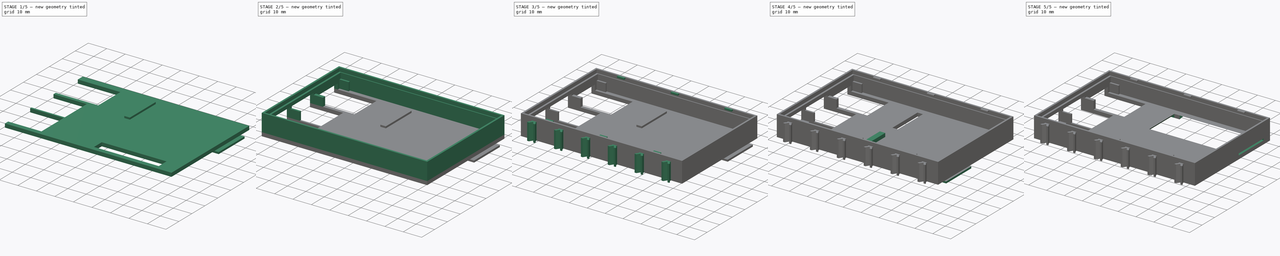
[diagram: build sequence overview — one tinted view per stage of 5, left to right]
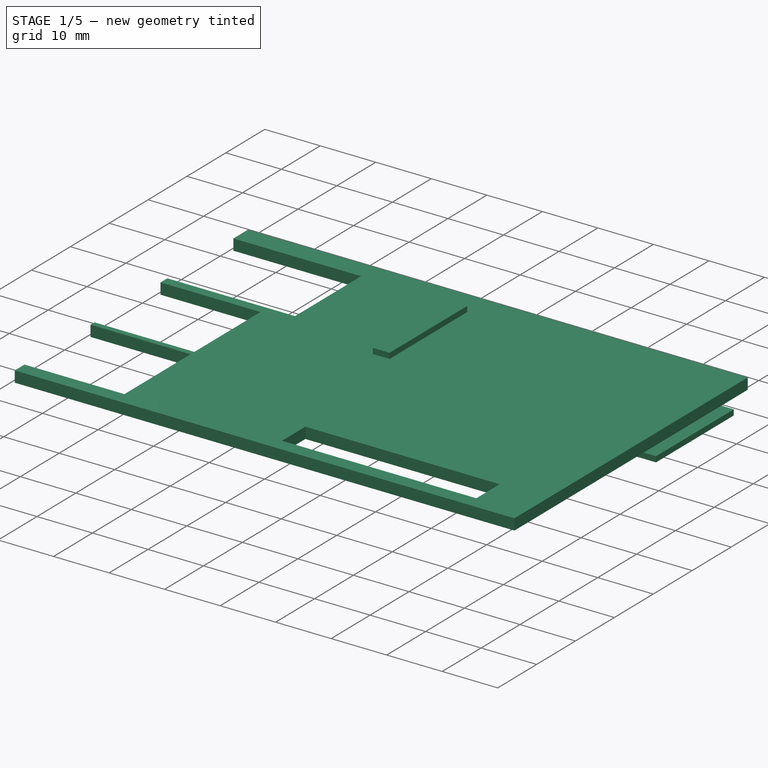
[diagram: stage 1 of 5 — iso view after this stage's code; geometry added in this stage tinted green]
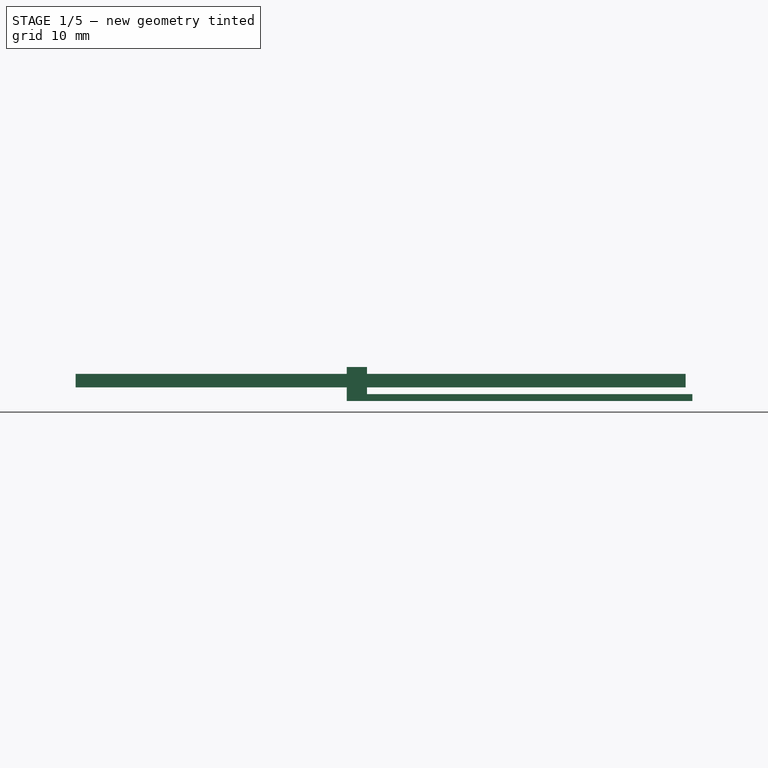
[diagram: stage 1 of 5 — front view after this stage's code; geometry added in this stage tinted green]
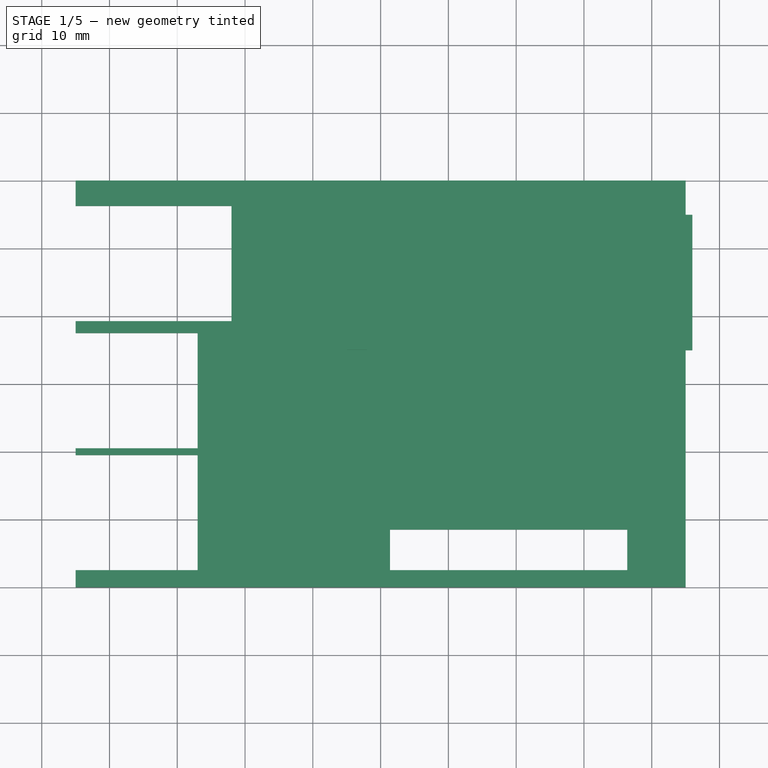
[diagram: stage 1 of 5 — top view after this stage's code; geometry added in this stage tinted green]
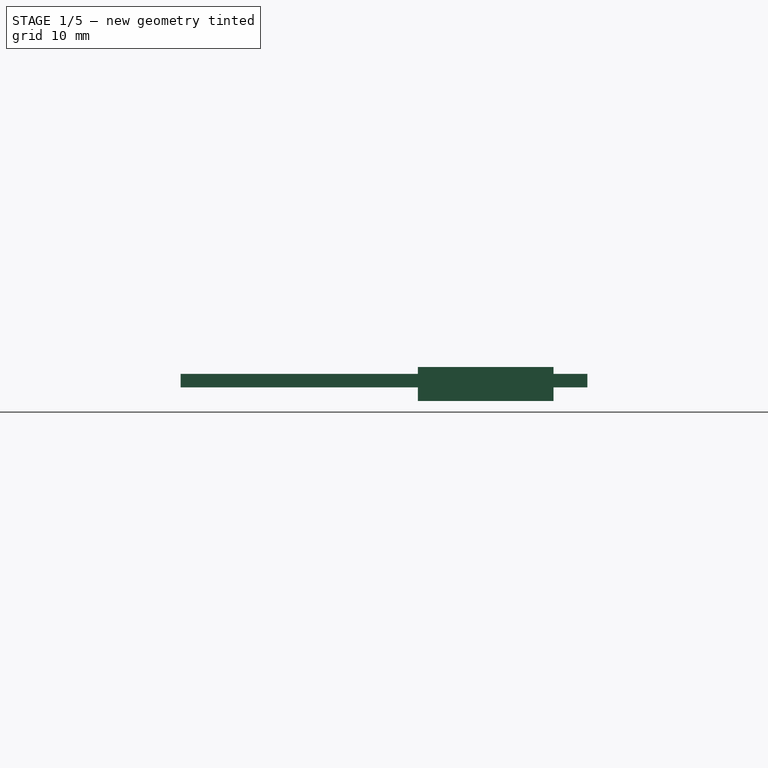
[diagram: stage 1 of 5 — right view after this stage's code; geometry added in this stage tinted green]
FCSTD DOCUMENT  (FreeCAD 0.19RUnknown)
Label: display_v4_bottom_with_ribbon_slot
License: All rights reserved
LicenseURL: http://en.wikipedia.org/wiki/All_rights_reserved
objects: Sketcher::SketchObject×8, PartDesign::Pad×7, Part::Box×4, Part::MultiFuse×2, Part::Cut×2, Part::Chamfer×2, PartDesign::Pocket×1, PartDesign::LinearPattern×1, PartDesign::Chamfer×1
note: 36 computed .brp shape members not serialized (recipe doc carries the construction recipe); baked Part::Feature solids carry a one-line shape summary decoded from their .brp

FEATURE [Sketcher::SketchObject] Sketch
  MapMode = 5
  sketch-geometry (30):
    g0: LineSegment StartX=-45 StartY=30 StartZ=0 EndX=-45 EndY=26.25 EndZ=0
    g1: LineSegment StartX=-45 StartY=26.25 StartZ=0 EndX=-22 EndY=26.25 EndZ=0
    g2: LineSegment StartX=-22 StartY=26.25 StartZ=0 EndX=-22 EndY=9.25 EndZ=0
    g3: LineSegment StartX=-22 StartY=9.25 StartZ=0 EndX=-45 EndY=9.25 EndZ=0
    g4: LineSegment StartX=-45 StartY=9.25 StartZ=0 EndX=-45 EndY=7.5 EndZ=0
    g5: LineSegment StartX=-45 StartY=7.5 StartZ=0 EndX=-27 EndY=7.5 EndZ=0
    g6: LineSegment StartX=-27 StartY=7.5 StartZ=0 EndX=-27 EndY=-9.5 EndZ=0
    g7: LineSegment StartX=-27 StartY=-9.5 StartZ=0 EndX=-45 EndY=-9.5 EndZ=0
    g8: LineSegment StartX=-45 StartY=-9.5 StartZ=0 EndX=-45 EndY=-10.5 EndZ=0
    g9: LineSegment StartX=-45 StartY=-10.5 StartZ=0 EndX=-27 EndY=-10.5 EndZ=0
    g10: LineSegment StartX=-27 StartY=-10.5 StartZ=0 EndX=-27 EndY=-27.5 EndZ=0
    g11: LineSegment StartX=-27 StartY=-27.5 StartZ=0 EndX=-45 EndY=-27.5 EndZ=0
    g12: LineSegment StartX=-45 StartY=-27.5 StartZ=0 EndX=-45 EndY=-30 EndZ=0
    g13: LineSegment StartX=-45 StartY=-30 StartZ=0 EndX=45 EndY=-30 EndZ=0
    g14: LineSegment StartX=45 StartY=-30 StartZ=0 EndX=45 EndY=30 EndZ=0
    g15: LineSegment StartX=45 StartY=30 StartZ=0 EndX=-45 EndY=30 EndZ=0
    g16: LineSegment StartX=1.39 StartY=-21.5 StartZ=0 EndX=36.39 EndY=-21.5 EndZ=0
    g17: LineSegment StartX=36.39 StartY=-21.5 StartZ=0 EndX=36.39 EndY=-27.5 EndZ=0
    g18: LineSegment StartX=36.39 StartY=-27.5 StartZ=0 EndX=1.39 EndY=-27.5 EndZ=0
    g19: LineSegment StartX=1.39 StartY=-27.5 StartZ=0 EndX=1.39 EndY=-21.5 EndZ=0
    g20: LineSegment [constr] StartX=-45 StartY=26.25 StartZ=0 EndX=-45 EndY=9.25 EndZ=0
    g21: LineSegment [constr] StartX=-45 StartY=7.5 StartZ=0 EndX=-45 EndY=-9.5 EndZ=0
    g22: LineSegment [constr] StartX=-45 StartY=-10.5 StartZ=0 EndX=-45 EndY=-27.5 EndZ=0
    g23: LineSegment [constr] StartX=-27 StartY=-9.5 StartZ=0 EndX=-27 EndY=-10.5 EndZ=0
    g24: GeomPoint [constr] X=-45 Y=-19 Z=0
    g25: GeomPoint [constr] X=-45 Y=-1 Z=0
    g26: GeomPoint [constr] X=-45 Y=17.75 Z=0
    g27: GeomPoint [constr] X=-45 Y=28 Z=0
    g28: GeomPoint [constr] X=18.89 Y=-27.5 Z=0
    g29: GeomPoint [constr] X=36.39 Y=-24.5 Z=0
  constraints (80):
    c: Vertical(g0)
    c: Coincident(g0,g1)
    c: Horizontal(g1)
    c: Coincident(g1,g2)
    c: Vertical(g2)
    c: Coincident(g2,g3)
    c: Horizontal(g3)
    c: Coincident(g3,g4)
    c: Vertical(g4)
    c: Coincident(g4,g5)
    c: Horizontal(g5)
    c: Coincident(g5,g6)
    c: Vertical(g6)
    c: Coincident(g6,g7)
    c: Horizontal(g7)
    c: Coincident(g7,g8)
    c: Coincident(g8,g9)
    c: Horizontal(g9)
    c: Coincident(g9,g10)
    c: Vertical(g10)
    c: Coincident(g10,g11)
    c: Horizontal(g11)
    c: Coincident(g11,g12)
    c: Coincident(g12,g13)
    c: Horizontal(g13)
    c: Coincident(g13,g14)
    c: Vertical(g14)
    c: Coincident(g14,g15)
    c: Coincident(g15,g0)
    c: Horizontal(g15)
    c: Coincident(g16,g17)
    c: Coincident(g17,g18)
    c: Coincident(g18,g19)
    c: Coincident(g19,g16)
    c: Horizontal(g16)
    c: Horizontal(g18)
    c: Vertical(g17)
    c: Vertical(g19)
    c: Symmetric(g0,g14,g-2)
    c: Coincident(g20,g0)
    c: Coincident(g20,g3)
    c: Vertical(g20)
    c: Coincident(g21,g4)
    c: Coincident(g21,g7)
    c: Vertical(g21)
    c: Coincident(g22,g8)
    c: Coincident(g22,g11)
    c: Vertical(g8)
    c: Vertical(g22)
    c: Vertical(g12)
    c: Coincident(g23,g6)
    c: Coincident(g23,g9)
    c: Vertical(g23)
    c: DistanceX(g4,g5) = 18
    c: DistanceY(g3,g0) = 17
    c: DistanceY(g7,g4) = 17
    c: DistanceY(g11,g8) = 17
    c: PointOnObject(g24,g22)
    c: PointOnObject(g25,g21)
    c: PointOnObject(g26,g20)
    c: Symmetric(g3,g0,g26)
    c: Symmetric(g4,g7,g25)
    c: Symmetric(g11,g8,g24)
    c: PointOnObject(g27,g0)
    c: DistanceY(g27,g0) = 2
    c: DistanceY(g26,g27) = 10.25
    c: DistanceY(g25,g27) = 29
    c: DistanceY(g24,g27) = 47
    c: DistanceX(g0,g1) = 23
    c: Symmetric(g14,g13,g-1)
    c: DistanceX(g0,g14) = 90
    c: DistanceY(g13,g14) = 60
    c: DistanceX(g16,g16) = 35
    c: DistanceY(g18,g16) = 6
    c: PointOnObject(g28,g18)
    c: Symmetric(g18,g17,g28)
    c: DistanceX(g28,g13) = 26.11
    c: PointOnObject(g29,g17)
    c: Symmetric(g17,g16,g29)
    c: DistanceY(g13,g29) = 5.5
FEATURE [PartDesign::Pad] Pad
  Length = 2
  Length2 = 100
  Profile = -> Sketch
  Type = 0
FEATURE [Part::Box] Box002  label="Würfel002"
  AttacherType = Attacher::AttachEngine3D
  Height = 5
  Length = 3
  Placement = pos=(-5,-25,-1) rot=(0,0,1;0rad)
  Width = 20
FEATURE [Part::Box] Box001  label="Würfel001"
  AttacherType = Attacher::AttachEngine3D
  Height = 1
  Length = 51
  Placement = pos=(-5,-25,-1) rot=(0,0,1;0rad)
  Width = 20
FEATURE [Part::MultiFuse] Fusion  label="wire channel"
  Placement = pos=(0,30,-1) rot=(0,0,1;0rad)
  Shapes = -> [Box001,Box002]
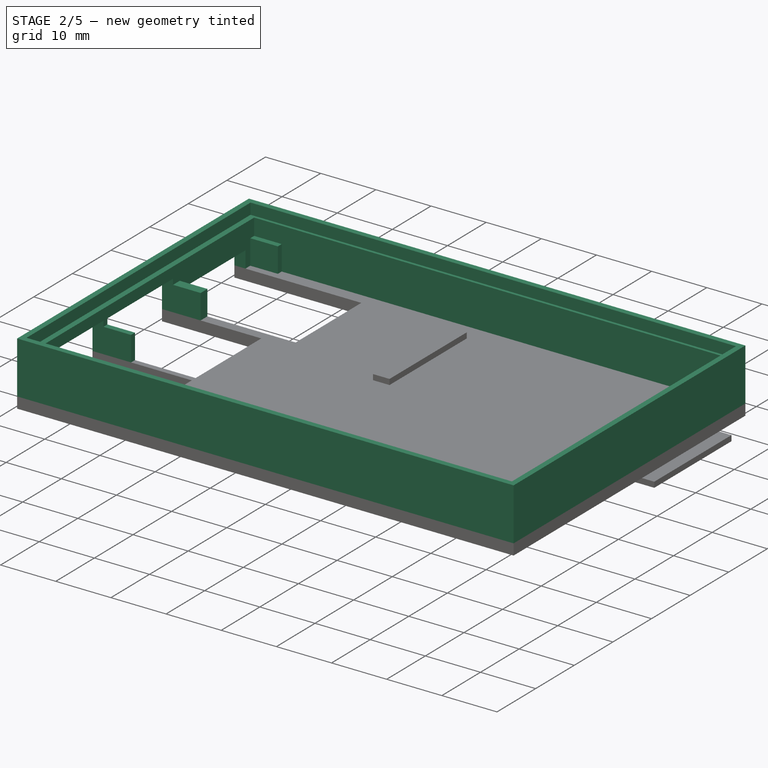
[diagram: stage 2 of 5 — iso view after this stage's code; geometry added in this stage tinted green]
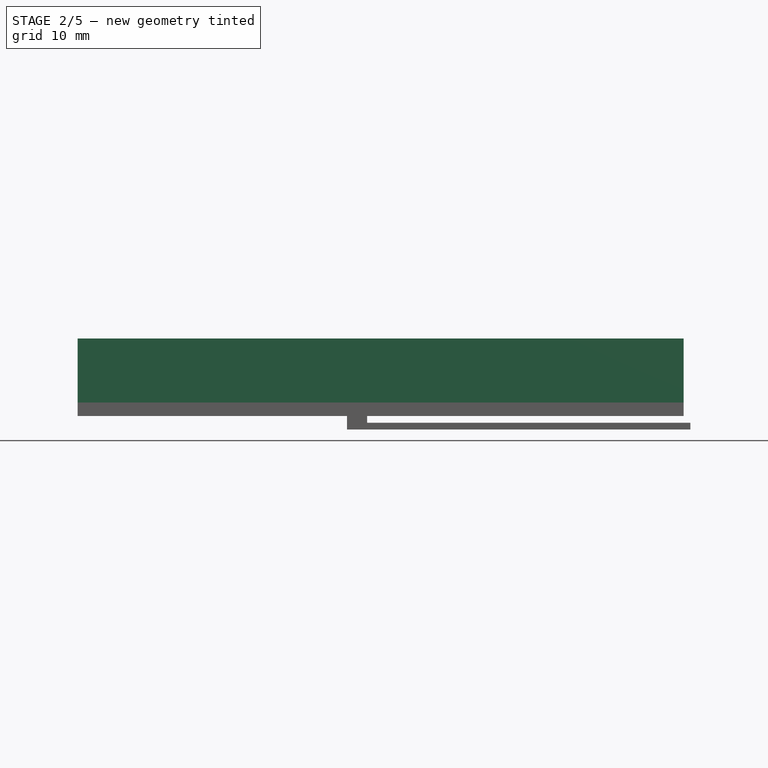
[diagram: stage 2 of 5 — front view after this stage's code; geometry added in this stage tinted green]
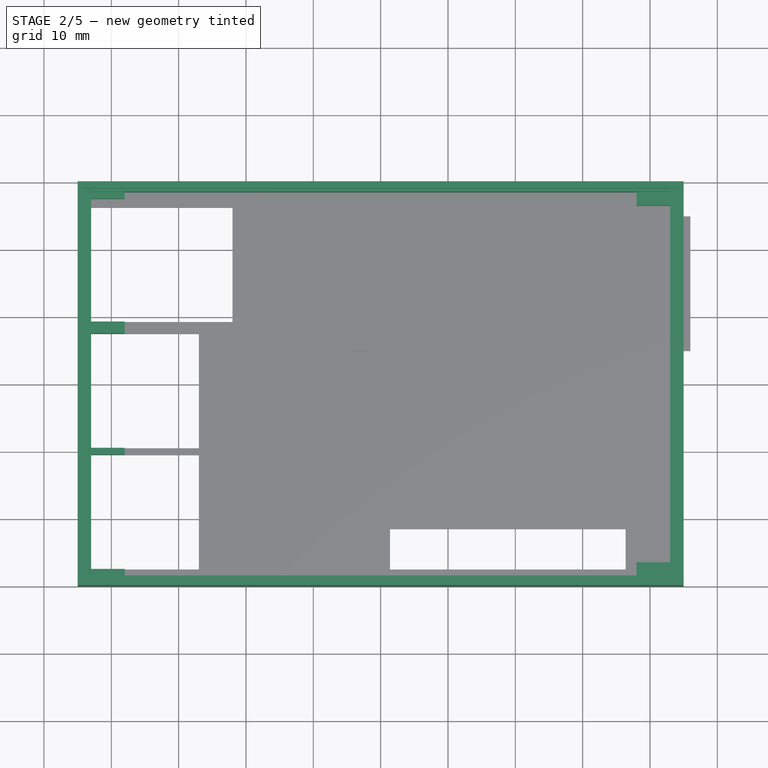
[diagram: stage 2 of 5 — top view after this stage's code; geometry added in this stage tinted green]
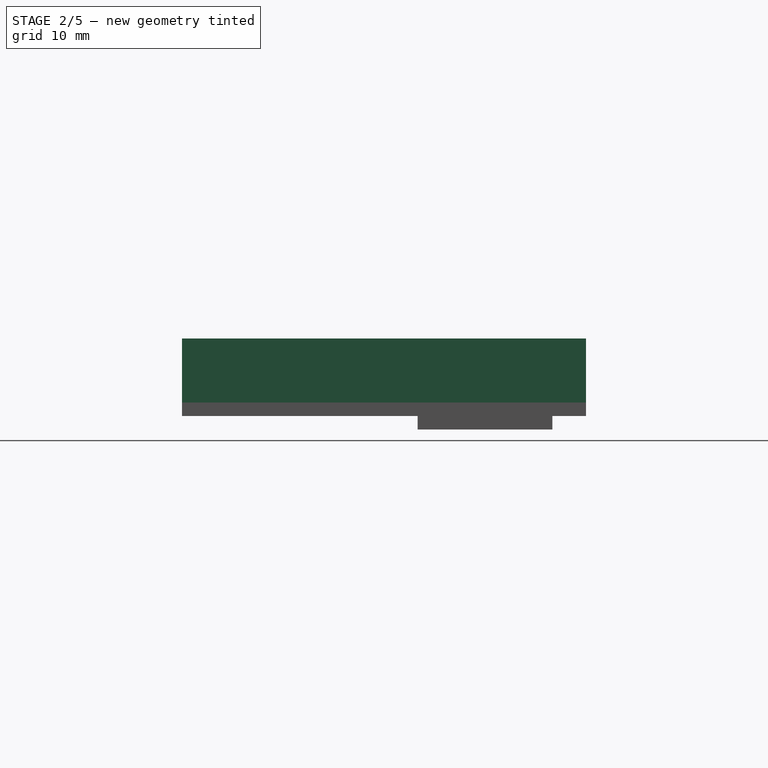
[diagram: stage 2 of 5 — right view after this stage's code; geometry added in this stage tinted green]
FEATURE [Sketcher::SketchObject] Sketch001
  MapMode = 5
  Placement = pos=(0,0,2) rot=(0,0,1;0rad)
  Support = -> [Pad]
  sketch-geometry (30):
    g0: LineSegment StartX=-45 StartY=9.25 StartZ=0 EndX=-43 EndY=9.25 EndZ=0
    g1: LineSegment StartX=-43 StartY=9.25 StartZ=0 EndX=-43 EndY=7.5 EndZ=0
    g2: LineSegment StartX=-43 StartY=7.5 StartZ=0 EndX=-45 EndY=7.5 EndZ=0
    g3: LineSegment StartX=-45 StartY=7.5 StartZ=0 EndX=-45 EndY=9.25 EndZ=0
    g4: LineSegment StartX=-45 StartY=-9.5 StartZ=0 EndX=-43 EndY=-9.5 EndZ=0
    g5: LineSegment StartX=-43 StartY=-9.5 StartZ=0 EndX=-43 EndY=-10.5 EndZ=0
    g6: LineSegment StartX=-43 StartY=-10.5 StartZ=0 EndX=-45 EndY=-10.5 EndZ=0
    g7: LineSegment StartX=-45 StartY=-10.5 StartZ=0 EndX=-45 EndY=-9.5 EndZ=0
    g8: LineSegment StartX=-45 StartY=-27.5 StartZ=0 EndX=-43 EndY=-27.5 EndZ=0
    g9: LineSegment StartX=-43 StartY=-27.5 StartZ=0 EndX=-43 EndY=-28.5 EndZ=0
    g10: LineSegment StartX=-43 StartY=-28.5 StartZ=0 EndX=43 EndY=-28.5 EndZ=0
    g11: LineSegment StartX=43 StartY=-28.5 StartZ=0 EndX=43 EndY=28.5 EndZ=0
    g12: LineSegment StartX=43 StartY=28.5 StartZ=0 EndX=-43 EndY=28.5 EndZ=0
    g13: LineSegment StartX=-43 StartY=28.5 StartZ=0 EndX=-43 EndY=26.25 EndZ=0
    g14: LineSegment StartX=-43 StartY=26.25 StartZ=0 EndX=-45 EndY=26.25 EndZ=0
    g15: LineSegment StartX=-45 StartY=26.25 StartZ=0 EndX=-45 EndY=30 EndZ=0
    g16: LineSegment StartX=-45 StartY=30 StartZ=0 EndX=45 EndY=30 EndZ=0
    g17: LineSegment StartX=45 StartY=30 StartZ=0 EndX=45 EndY=-30 EndZ=0
    g18: LineSegment StartX=45 StartY=-30 StartZ=0 EndX=-45 EndY=-30 EndZ=0
    g19: LineSegment StartX=-45 StartY=-30 StartZ=0 EndX=-45 EndY=-27.5 EndZ=0
    g20: LineSegment [constr] StartX=-45 StartY=-10.5 StartZ=0 EndX=-45 EndY=-27.5 EndZ=0
    g21: LineSegment [constr] StartX=-43 StartY=-27.5 StartZ=0 EndX=-43 EndY=-10.5 EndZ=0
    g22: LineSegment [constr] StartX=-45 StartY=7.5 StartZ=0 EndX=-45 EndY=-9.5 EndZ=0
    g23: LineSegment [constr] StartX=-43 StartY=7.5 StartZ=0 EndX=-43 EndY=-9.5 EndZ=0
    g24: LineSegment [constr] StartX=-45 StartY=9.25 StartZ=0 EndX=-45 EndY=26.25 EndZ=0
    g25: LineSegment [constr] StartX=-43 StartY=26.25 StartZ=0 EndX=-43 EndY=9.25 EndZ=0
    g26: GeomPoint [constr] X=-45 Y=28 Z=0
    g27: GeomPoint [constr] X=-45 Y=17.75 Z=0
    g28: GeomPoint [constr] X=-45 Y=-1 Z=0
    g29: GeomPoint [constr] X=-45 Y=-19 Z=0
  constraints (80):
    c: Coincident(g0,g1)
    c: Coincident(g1,g2)
    c: Coincident(g2,g3)
    c: Coincident(g3,g0)
    c: Horizontal(g0)
    c: Horizontal(g2)
    c: Vertical(g1)
    c: Vertical(g3)
    c: Coincident(g4,g5)
    c: Coincident(g5,g6)
    c: Coincident(g6,g7)
    c: Coincident(g7,g4)
    c: Horizontal(g4)
    c: Horizontal(g6)
    c: Vertical(g5)
    c: Vertical(g7)
    c: Coincident(g8,g9)
    c: Vertical(g9)
    c: Coincident(g9,g10)
    c: Horizontal(g10)
    c: Coincident(g10,g11)
    c: Vertical(g11)
    c: Coincident(g11,g12)
    c: Horizontal(g12)
    c: Coincident(g12,g13)
    c: Coincident(g13,g14)
    c: Horizontal(g14)
    c: Coincident(g14,g15)
    c: Vertical(g15)
    c: Coincident(g15,g16)
    c: Horizontal(g16)
    c: Coincident(g16,g17)
    c: Vertical(g17)
    c: Coincident(g17,g18)
    c: Horizontal(g18)
    c: Coincident(g18,g19)
    c: Coincident(g19,g8)
    c: Horizontal(g8)
    c: Vertical(g19)
    c: Coincident(g20,g6)
    c: Coincident(g20,g8)
    c: Vertical(g20)
    c: Coincident(g21,g8)
    c: Coincident(g21,g5)
    c: Coincident(g22,g2)
    c: Coincident(g22,g4)
    c: Vertical(g22)
    c: Coincident(g23,g1)
    c: Coincident(g23,g4)
    c: Vertical(g23)
    c: Coincident(g24,g0)
    c: Coincident(g24,g14)
    c: Vertical(g24)
    c: Coincident(g25,g13)
    c: Coincident(g25,g0)
    c: Vertical(g25)
    c: Vertical(g21)
    c: Vertical(g13)
    c: DistanceX(g8,g8) = 2
    c: Symmetric(g15,g16,g-2)
    c: Symmetric(g11,g12,g-2)
    c: Symmetric(g16,g17,g-1)
    c: Symmetric(g10,g11,g-1)
    c: DistanceX(g15,g16) = 90
    c: DistanceY(g17,g16) = 60
    c: DistanceY(g17,g10) = 1.5
    c: PointOnObject(g26,g15)
    c: DistanceY(g26,g15) = 2
    c: PointOnObject(g27,g24)
    c: PointOnObject(g28,g22)
    c: PointOnObject(g29,g20)
    c: Symmetric(g14,g0,g27)
    c: Symmetric(g4,g2,g28)
    c: Symmetric(g8,g6,g29)
    c: Equal(g25,g23)
    c: Equal(g23,g21)
    c: DistanceY(g25,g25) = 17
    c: DistanceY(g27,g26) = 10.25
    c: DistanceY(g28,g26) = 29
    c: DistanceY(g29,g26) = 47
FEATURE [PartDesign::Pad] Pad001
  Length = 9.5
  Length2 = 100
  Profile = -> Sketch001
  Type = 0
FEATURE [Sketcher::SketchObject] Sketch002
  MapMode = 5
  Placement = pos=(-45,0,0) rot=(0.57735,-0.57735,-0.57735;2.0944rad)
  Support = -> [Pad001]
  sketch-geometry (18):
    g0: LineSegment StartX=-26.25 StartY=11.5 StartZ=0 EndX=-9.25 EndY=11.5 EndZ=0
    g1: LineSegment StartX=-9.25 StartY=11.5 StartZ=0 EndX=-9.25 EndY=5 EndZ=0
    g2: LineSegment StartX=-9.25 StartY=5 StartZ=0 EndX=-26.25 EndY=5 EndZ=0
    g3: LineSegment StartX=-26.25 StartY=5 StartZ=0 EndX=-26.25 EndY=11.5 EndZ=0
    g4: LineSegment StartX=-7.5 StartY=11.5 StartZ=0 EndX=9.5 EndY=11.5 EndZ=0
    g5: LineSegment StartX=9.5 StartY=11.5 StartZ=0 EndX=9.5 EndY=7.5 EndZ=0
    g6: LineSegment StartX=9.5 StartY=7.5 StartZ=0 EndX=-7.5 EndY=7.5 EndZ=0
    g7: LineSegment StartX=-7.5 StartY=7.5 StartZ=0 EndX=-7.5 EndY=11.5 EndZ=0
    g8: LineSegment StartX=10.5 StartY=11.5 StartZ=0 EndX=27.5 EndY=11.5 EndZ=0
    g9: LineSegment StartX=27.5 StartY=11.5 StartZ=0 EndX=27.5 EndY=7.5 EndZ=0
    g10: LineSegment StartX=27.5 StartY=7.5 StartZ=0 EndX=10.5 EndY=7.5 EndZ=0
    g11: LineSegment StartX=10.5 StartY=7.5 StartZ=0 EndX=10.5 EndY=11.5 EndZ=0
    g12: LineSegment [constr] StartX=-9.25 StartY=11.5 StartZ=0 EndX=-7.5 EndY=11.5 EndZ=0
    g13: LineSegment [constr] StartX=9.5 StartY=11.5 StartZ=0 EndX=10.5 EndY=11.5 EndZ=0
    g14: GeomPoint [constr] X=-17.75 Y=5 Z=0
    g15: GeomPoint [constr] X=1 Y=7.5 Z=0
    g16: GeomPoint [constr] X=19 Y=7.5 Z=0
    g17: LineSegment [constr] StartX=9.5 StartY=7.5 StartZ=0 EndX=10.5 EndY=7.5 EndZ=0
  constraints (48):
    c: Coincident(g0,g1)
    c: Coincident(g1,g2)
    c: Coincident(g2,g3)
    c: Coincident(g3,g0)
    c: Horizontal(g0)
    c: Horizontal(g2)
    c: Vertical(g1)
    c: Vertical(g3)
    c: Coincident(g4,g5)
    c: Coincident(g5,g6)
    c: Coincident(g6,g7)
    c: Coincident(g7,g4)
    c: Horizontal(g4)
    c: Horizontal(g6)
    c: Vertical(g5)
    c: Vertical(g7)
    c: Coincident(g8,g9)
    c: Coincident(g9,g10)
    c: Coincident(g10,g11)
    c: Coincident(g11,g8)
    c: Horizontal(g8)
    c: Horizontal(g10)
    c: Vertical(g9)
    c: Vertical(g11)
    c: Coincident(g12,g0)
    c: Coincident(g12,g4)
    c: Coincident(g13,g4)
    c: Coincident(g13,g8)
    c: Horizontal(g13)
    c: Horizontal(g12)
    c: Equal(g0,g4)
    c: Equal(g4,g8)
    c: DistanceX(g0,g0) = 17
    c: PointOnObject(g14,g2)
    c: PointOnObject(g15,g6)
    c: PointOnObject(g16,g10)
    c: Symmetric(g2,g1,g14)
    c: Symmetric(g6,g5,g15)
    c: Symmetric(g10,g9,g16)
    c: DistanceX(g14,g-1) = 17.75
    c: DistanceX(g-1,g15) = 1
    c: DistanceX(g-1,g16) = 19
    c: DistanceY(g-1,g14) = 5
    c: DistanceY(g-1,g15) = 7.5
    c: Coincident(g17,g5)
    c: Coincident(g17,g10)
    c: Horizontal(g17)
    c: DistanceY(g-1,g0) = 11.5
FEATURE [PartDesign::Pad] Pad002
  Length = 2
  Length2 = 100
  Profile = -> Sketch002
  Reversed = true
  Type = 0
FEATURE [Sketcher::SketchObject] Sketch003
  MapMode = 5
  Placement = pos=(0,0,2) rot=(0,0,1;0rad)
  Support = -> [Pad002]
  sketch-geometry (34):
    g0: LineSegment StartX=-43 StartY=28.5 StartZ=0 EndX=-38 EndY=28.5 EndZ=0
    g1: LineSegment StartX=-38 StartY=28.5 StartZ=0 EndX=-38 EndY=27.5 EndZ=0
    g2: LineSegment StartX=-38 StartY=27.5 StartZ=0 EndX=-43 EndY=27.5 EndZ=0
    g3: LineSegment StartX=-43 StartY=27.5 StartZ=0 EndX=-43 EndY=28.5 EndZ=0
    g4: LineSegment StartX=-43 StartY=9.25 StartZ=0 EndX=-38 EndY=9.25 EndZ=0
    g5: LineSegment StartX=-38 StartY=9.25 StartZ=0 EndX=-38 EndY=7.5 EndZ=0
    g6: LineSegment StartX=-38 StartY=7.5 StartZ=0 EndX=-43 EndY=7.5 EndZ=0
    g7: LineSegment StartX=-43 StartY=7.5 StartZ=0 EndX=-43 EndY=9.25 EndZ=0
    g8: LineSegment StartX=-43 StartY=-9.5 StartZ=0 EndX=-38 EndY=-9.5 EndZ=0
    g9: LineSegment StartX=-38 StartY=-9.5 StartZ=0 EndX=-38 EndY=-10.5 EndZ=0
    g10: LineSegment StartX=-38 StartY=-10.5 StartZ=0 EndX=-43 EndY=-10.5 EndZ=0
    g11: LineSegment StartX=-43 StartY=-10.5 StartZ=0 EndX=-43 EndY=-9.5 EndZ=0
    g12: LineSegment StartX=-43 StartY=-27.5 StartZ=0 EndX=-38 EndY=-27.5 EndZ=0
    g13: LineSegment StartX=-38 StartY=-27.5 StartZ=0 EndX=-38 EndY=-28.5 EndZ=0
    g14: LineSegment StartX=-38 StartY=-28.5 StartZ=0 EndX=-43 EndY=-28.5 EndZ=0
    g15: LineSegment StartX=-43 StartY=-28.5 StartZ=0 EndX=-43 EndY=-27.5 EndZ=0
    g16: LineSegment StartX=38 StartY=-26.5 StartZ=0 EndX=43 EndY=-26.5 EndZ=0
    g17: LineSegment StartX=43 StartY=-26.5 StartZ=0 EndX=43 EndY=-28.5 EndZ=0
    g18: LineSegment StartX=43 StartY=-28.5 StartZ=0 EndX=38 EndY=-28.5 EndZ=0
    g19: LineSegment StartX=38 StartY=-28.5 StartZ=0 EndX=38 EndY=-26.5 EndZ=0
    g20: LineSegment StartX=38 StartY=28.5 StartZ=0 EndX=43 EndY=28.5 EndZ=0
    g21: LineSegment StartX=43 StartY=28.5 StartZ=0 EndX=43 EndY=26.5 EndZ=0
    g22: LineSegment StartX=43 StartY=26.5 StartZ=0 EndX=38 EndY=26.5 EndZ=0
    g23: LineSegment StartX=38 StartY=26.5 StartZ=0 EndX=38 EndY=28.5 EndZ=0
    g24: LineSegment [constr] StartX=-38 StartY=28.5 StartZ=0 EndX=38 EndY=28.5 EndZ=0
    g25: LineSegment [constr] StartX=38 StartY=26.5 StartZ=0 EndX=38 EndY=-26.5 EndZ=0
    g26: LineSegment [constr] StartX=43 StartY=26.5 StartZ=0 EndX=43 EndY=-26.5 EndZ=0
    g27: LineSegment [constr] StartX=-38 StartY=-28.5 StartZ=0 EndX=38 EndY=-28.5 EndZ=0
    g28: LineSegment [constr] StartX=-43 StartY=-27.5 StartZ=0 EndX=-43 EndY=-10.5 EndZ=0
    g29: LineSegment [constr] StartX=-38 StartY=-10.5 StartZ=0 EndX=-38 EndY=-27.5 EndZ=0
    g30: LineSegment [constr] StartX=-38 StartY=-9.5 StartZ=0 EndX=-38 EndY=7.5 EndZ=0
    g31: LineSegment [constr] StartX=-43 StartY=7.5 StartZ=0 EndX=-43 EndY=-9.5 EndZ=0
    g32: LineSegment [constr] StartX=-43 StartY=9.25 StartZ=0 EndX=-43 EndY=27.5 EndZ=0
    g33: LineSegment [constr] StartX=-38 StartY=27.5 StartZ=0 EndX=-38 EndY=9.25 EndZ=0
  constraints (91):
    c: Coincident(g0,g1)
    c: Coincident(g1,g2)
    c: Coincident(g2,g3)
    c: Coincident(g3,g0)
    c: Horizontal(g0)
    c: Horizontal(g2)
    c: Vertical(g1)
    c: Vertical(g3)
    c: Coincident(g4,g5)
    c: Coincident(g5,g6)
    c: Coincident(g6,g7)
    c: Coincident(g7,g4)
    c: Horizontal(g4)
    c: Horizontal(g6)
    c: Vertical(g5)
    c: Vertical(g7)
    c: Coincident(g8,g9)
    c: Coincident(g9,g10)
    c: Coincident(g10,g11)
    c: Coincident(g11,g8)
    c: Horizontal(g8)
    c: Horizontal(g10)
    c: Vertical(g9)
    c: Vertical(g11)
    c: Coincident(g12,g13)
    c: Coincident(g13,g14)
    c: Coincident(g14,g15)
    c: Coincident(g15,g12)
    c: Horizontal(g12)
    c: Horizontal(g14)
    c: Vertical(g13)
    c: Vertical(g15)
    c: Coincident(g16,g17)
    c: Coincident(g17,g18)
    c: Coincident(g18,g19)
    c: Coincident(g19,g16)
    c: Horizontal(g16)
    c: Horizontal(g18)
    c: Vertical(g17)
    c: Vertical(g19)
    c: Coincident(g20,g21)
    c: Coincident(g21,g22)
    c: Coincident(g22,g23)
    c: Coincident(g23,g20)
    c: Horizontal(g20)
    c: Horizontal(g22)
    c: Vertical(g21)
    c: Vertical(g23)
    c: Coincident(g24,g0)
    c: Coincident(g24,g20)
    c: Coincident(g25,g16)
    c: Vertical(g25)
    c: Coincident(g26,g21)
    c: Coincident(g26,g16)
    c: Vertical(g26)
    c: Coincident(g25,g22)
    c: Coincident(g27,g13)
    c: Coincident(g27,g18)
    c: Horizontal(g27)
    c: Coincident(g28,g12)
    c: Coincident(g28,g10)
    c: Coincident(g29,g9)
    c: Coincident(g29,g12)
    c: Coincident(g30,g8)
    c: Coincident(g30,g5)
    c: Vertical(g30)
    c: Coincident(g31,g6)
    c: Coincident(g31,g8)
    c: Vertical(g31)
    c: Coincident(g32,g4)
    c: Coincident(g32,g2)
    c: Vertical(g32)
    c: Coincident(g33,g1)
    c: Coincident(g33,g4)
    c: Vertical(g33)
    c: Vertical(g29)
    c: Vertical(g28)
    c: Symmetric(g0,g20,g-2)
    c: Symmetric(g0,g20,g-2)
    c: Symmetric(g16,g21,g-1)
    c: Symmetric(g20,g17,g-1)
    c: DistanceX(g0,g20) = 86
    c: DistanceY(g21,g20) = 2
    c: DistanceY(g6,g4) = 1.75
    c: DistanceY(g10,g8) = 1
    c: DistanceY(g17,g20) = 57
    c: DistanceX(g18,g17) = 5
    c: DistanceY(g8,g6) = 17
    c: Equal(g28,g31)
    c: DistanceY(g2,g0) = 1
    c: Symmetric(g2,g12,g-1)
FEATURE [PartDesign::Pad] Pad003
  Length = 4.5
  Length2 = 100
  Profile = -> Sketch003
  Type = 0
FEATURE [Sketcher::SketchObject] Sketch004
  MapMode = 5
  Placement = pos=(0,0,11.5) rot=(0,0,1;0rad)
  Support = -> [Pad003]
  sketch-geometry (4):
    g0: LineSegment StartX=-44 StartY=29 StartZ=0 EndX=44 EndY=29 EndZ=0
    g1: LineSegment StartX=44 StartY=29 StartZ=0 EndX=44 EndY=-29 EndZ=0
    g2: LineSegment StartX=44 StartY=-29 StartZ=0 EndX=-44 EndY=-29 EndZ=0
    g3: LineSegment StartX=-44 StartY=-29 StartZ=0 EndX=-44 EndY=29 EndZ=0
  constraints (12):
    c: Coincident(g0,g1)
    c: Coincident(g1,g2)
    c: Coincident(g2,g3)
    c: Coincident(g3,g0)
    c: Horizontal(g0)
    c: Horizontal(g2)
    c: Vertical(g1)
    c: Vertical(g3)
    c: Symmetric(g0,g0,g-2)
    c: DistanceX(g0,g0) = 88
    c: Symmetric(g2,g0,g-1)
    c: DistanceY(g2,g0) = 58
FEATURE [PartDesign::Pocket] Pocket
  Length = 2
  Length2 = 100
  Profile = -> Sketch004
  Type = 0
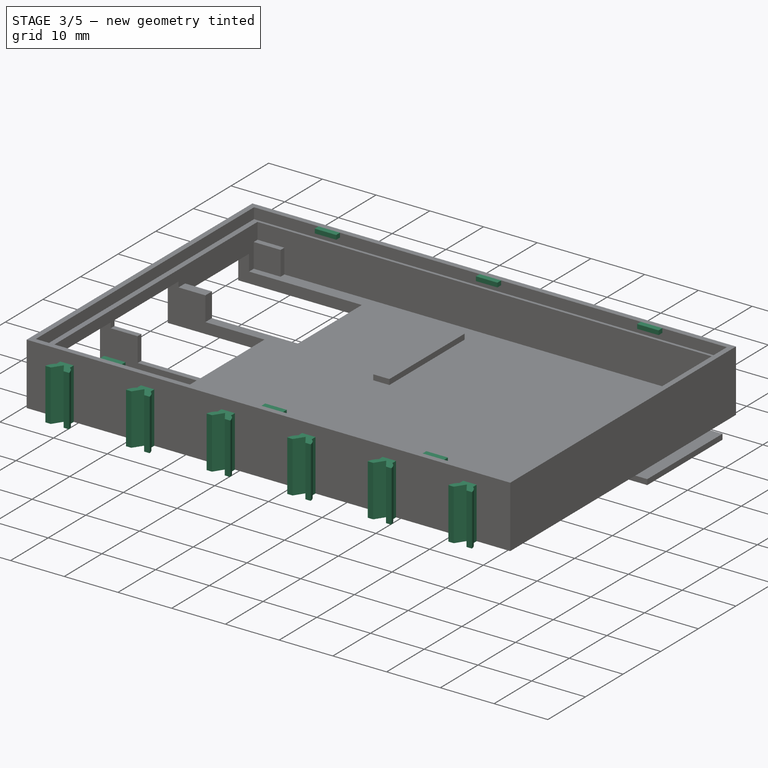
[diagram: stage 3 of 5 — iso view after this stage's code; geometry added in this stage tinted green]
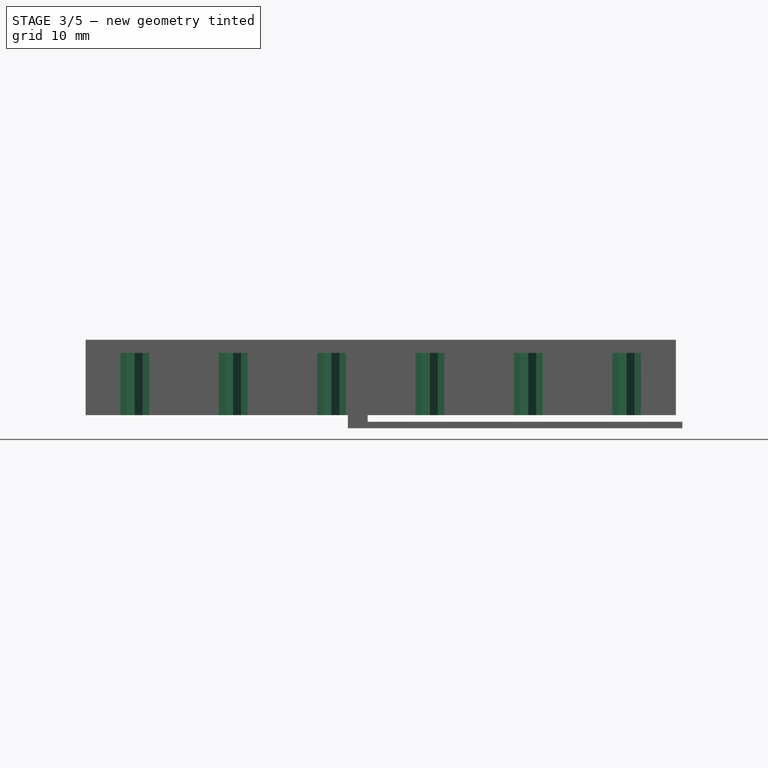
[diagram: stage 3 of 5 — front view after this stage's code; geometry added in this stage tinted green]
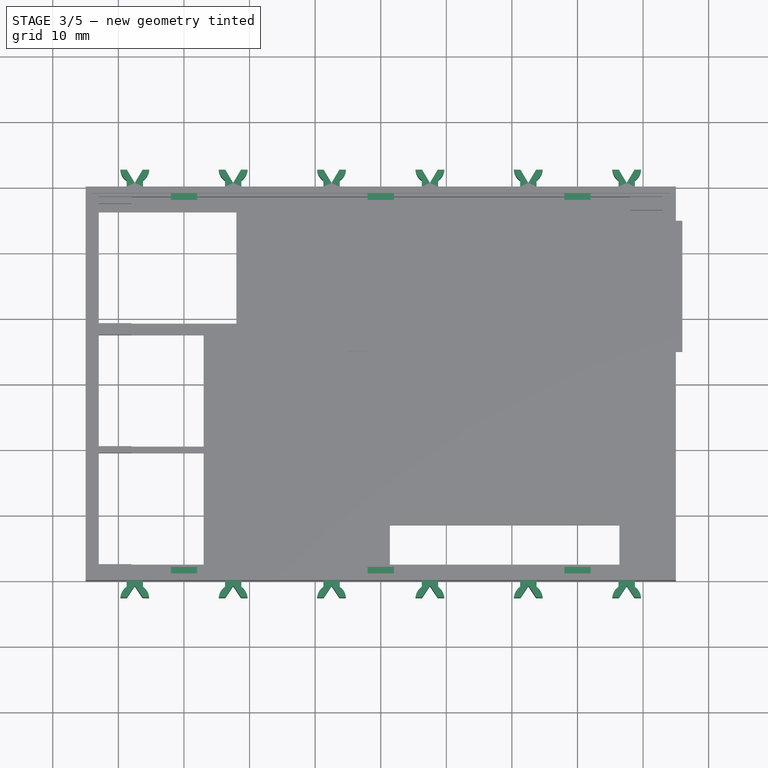
[diagram: stage 3 of 5 — top view after this stage's code; geometry added in this stage tinted green]
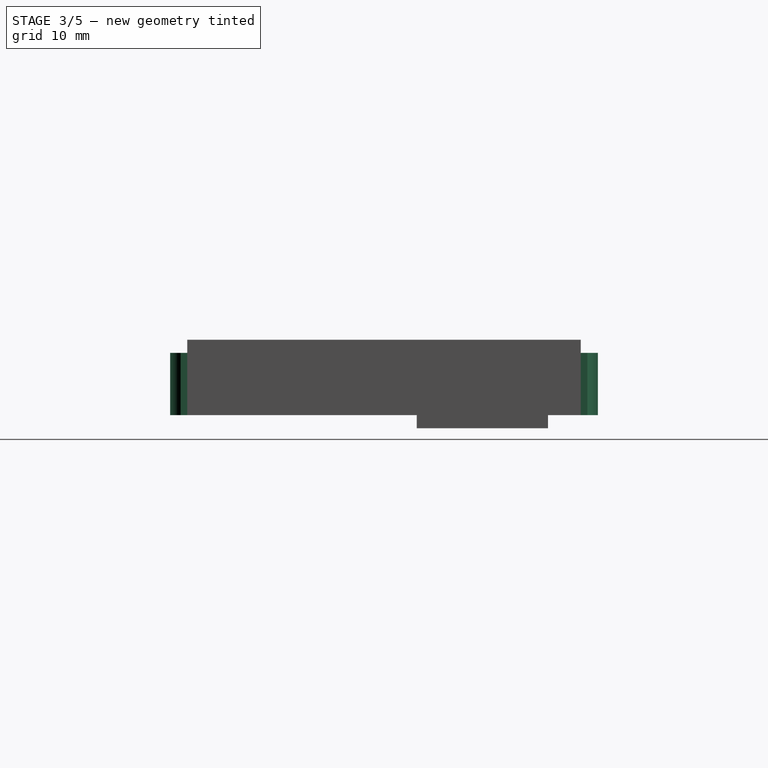
[diagram: stage 3 of 5 — right view after this stage's code; geometry added in this stage tinted green]
FEATURE [Sketcher::SketchObject] Sketch005
  MapMode = 5
  Placement = pos=(0,29,0) rot=(1,0,0;1.5708rad)
  Support = -> [Pocket]
  sketch-geometry (16):
    g0: LineSegment StartX=-32 StartY=11.5 StartZ=0 EndX=-28 EndY=11.5 EndZ=0
    g1: LineSegment StartX=-28 StartY=11.5 StartZ=0 EndX=-28 EndY=10.7 EndZ=0
    g2: LineSegment StartX=-28 StartY=10.7 StartZ=0 EndX=-32 EndY=10.7 EndZ=0
    g3: LineSegment StartX=-32 StartY=10.7 StartZ=0 EndX=-32 EndY=11.5 EndZ=0
    g4: LineSegment StartX=-2 StartY=11.5 StartZ=0 EndX=2 EndY=11.5 EndZ=0
    g5: LineSegment StartX=2 StartY=11.5 StartZ=0 EndX=2 EndY=10.7 EndZ=0
    g6: LineSegment StartX=2 StartY=10.7 StartZ=0 EndX=-2 EndY=10.7 EndZ=0
    g7: LineSegment StartX=-2 StartY=10.7 StartZ=0 EndX=-2 EndY=11.5 EndZ=0
    g8: LineSegment StartX=28 StartY=11.5 StartZ=0 EndX=32 EndY=11.5 EndZ=0
    g9: LineSegment StartX=32 StartY=11.5 StartZ=0 EndX=32 EndY=10.7 EndZ=0
    g10: LineSegment StartX=32 StartY=10.7 StartZ=0 EndX=28 EndY=10.7 EndZ=0
    g11: LineSegment StartX=28 StartY=10.7 StartZ=0 EndX=28 EndY=11.5 EndZ=0
    g12: LineSegment [constr] StartX=-28 StartY=11.5 StartZ=0 EndX=-2 EndY=11.5 EndZ=0
    g13: LineSegment [constr] StartX=2 StartY=11.5 StartZ=0 EndX=28 EndY=11.5 EndZ=0
    g14: LineSegment [constr] StartX=28 StartY=10.7 StartZ=0 EndX=2 EndY=10.7 EndZ=0
    g15: LineSegment [constr] StartX=-2 StartY=10.7 StartZ=0 EndX=-28 EndY=10.7 EndZ=0
  constraints (44):
    c: Coincident(g0,g1)
    c: Coincident(g1,g2)
    c: Coincident(g2,g3)
    c: Coincident(g3,g0)
    c: Horizontal(g0)
    c: Horizontal(g2)
    c: Vertical(g1)
    c: Vertical(g3)
    c: Coincident(g4,g5)
    c: Coincident(g5,g6)
    c: Coincident(g6,g7)
    c: Coincident(g7,g4)
    c: Horizontal(g4)
    c: Horizontal(g6)
    c: Vertical(g5)
    c: Vertical(g7)
    c: Coincident(g8,g9)
    c: Coincident(g9,g10)
    c: Coincident(g10,g11)
    c: Coincident(g11,g8)
    c: Horizontal(g8)
    c: Horizontal(g10)
    c: Vertical(g9)
    c: Vertical(g11)
    c: Coincident(g12,g0)
    c: Coincident(g12,g4)
    c: Coincident(g13,g4)
    c: Coincident(g13,g8)
    c: Horizontal(g13)
    c: Coincident(g14,g10)
    c: Coincident(g14,g5)
    c: Horizontal(g14)
    c: Coincident(g15,g6)
    c: Coincident(g15,g1)
    c: Horizontal(g15)
    c: Horizontal(g12)
    c: Equal(g0,g4)
    c: Equal(g4,g8)
    c: Equal(g12,g13)
    c: DistanceX(g4,g4) = 4
    c: DistanceX(g12,g12) = 26
    c: DistanceY(g2,g0) = 0.8
    c: Symmetric(g4,g4,g-2)
    c: DistanceY(g-1,g4) = 11.5
FEATURE [PartDesign::Pad] Pad004
  Length = 1
  Length2 = 100
  Profile = -> Sketch005
  Type = 0
FEATURE [Sketcher::SketchObject] Sketch006
  MapMode = 5
  Placement = pos=(0,-29,0) rot=(0,0.707107,0.707107;3.14159rad)
  Support = -> [Pad004]
  sketch-geometry (16):
    g0: LineSegment StartX=-32 StartY=11.5 StartZ=0 EndX=-28 EndY=11.5 EndZ=0
    g1: LineSegment StartX=-28 StartY=11.5 StartZ=0 EndX=-28 EndY=10.7 EndZ=0
    g2: LineSegment StartX=-28 StartY=10.7 StartZ=0 EndX=-32 EndY=10.7 EndZ=0
    g3: LineSegment StartX=-32 StartY=10.7 StartZ=0 EndX=-32 EndY=11.5 EndZ=0
    g4: LineSegment StartX=-2 StartY=11.5 StartZ=0 EndX=2 EndY=11.5 EndZ=0
    g5: LineSegment StartX=2 StartY=11.5 StartZ=0 EndX=2 EndY=10.7 EndZ=0
    g6: LineSegment StartX=2 StartY=10.7 StartZ=0 EndX=-2 EndY=10.7 EndZ=0
    g7: LineSegment StartX=-2 StartY=10.7 StartZ=0 EndX=-2 EndY=11.5 EndZ=0
    g8: LineSegment StartX=28 StartY=11.5 StartZ=0 EndX=32 EndY=11.5 EndZ=0
    g9: LineSegment StartX=32 StartY=11.5 StartZ=0 EndX=32 EndY=10.7 EndZ=0
    g10: LineSegment StartX=32 StartY=10.7 StartZ=0 EndX=28 EndY=10.7 EndZ=0
    g11: LineSegment StartX=28 StartY=10.7 StartZ=0 EndX=28 EndY=11.5 EndZ=0
    g12: LineSegment [constr] StartX=-28 StartY=11.5 StartZ=0 EndX=-2 EndY=11.5 EndZ=0
    g13: LineSegment [constr] StartX=2 StartY=11.5 StartZ=0 EndX=28 EndY=11.5 EndZ=0
    g14: LineSegment [constr] StartX=2 StartY=10.7 StartZ=0 EndX=28 EndY=10.7 EndZ=0
    g15: LineSegment [constr] StartX=-2 StartY=10.7 StartZ=0 EndX=-28 EndY=10.7 EndZ=0
  constraints (44):
    c: Coincident(g0,g1)
    c: Coincident(g1,g2)
    c: Coincident(g2,g3)
    c: Coincident(g3,g0)
    c: Horizontal(g0)
    c: Horizontal(g2)
    c: Vertical(g1)
    c: Vertical(g3)
    c: Coincident(g4,g5)
    c: Coincident(g5,g6)
    c: Coincident(g6,g7)
    c: Coincident(g7,g4)
    c: Horizontal(g4)
    c: Horizontal(g6)
    c: Vertical(g5)
    c: Vertical(g7)
    c: Coincident(g8,g9)
    c: Coincident(g9,g10)
    c: Coincident(g10,g11)
    c: Coincident(g11,g8)
    c: Horizontal(g8)
    c: Horizontal(g10)
    c: Vertical(g9)
    c: Vertical(g11)
    c: Coincident(g12,g0)
    c: Coincident(g12,g4)
    c: Horizontal(g12)
    c: Coincident(g13,g4)
    c: Coincident(g13,g8)
    c: Coincident(g14,g5)
    c: Coincident(g14,g10)
    c: Horizontal(g14)
    c: Coincident(g15,g6)
    c: Coincident(g15,g1)
    c: Horizontal(g15)
    c: Equal(g0,g4)
    c: Equal(g4,g8)
    c: Equal(g12,g13)
    c: Horizontal(g13)
    c: Symmetric(g4,g4,g-2)
    c: DistanceX(g4,g4) = 4
    c: DistanceX(g0,g4) = 26
    c: DistanceY(g2,g0) = 0.8
    c: DistanceY(g-1,g4) = 11.5
FEATURE [PartDesign::Pad] Pad005
  Length = 1
  Length2 = 100
  Profile = -> Sketch006
  Type = 0
FEATURE [Sketcher::SketchObject] Sketch007
  MapMode = 5
  Placement = pos=(0,0,0) rot=(1,0,0;3.14159rad)
  Support = -> [Pad005]
  sketch-geometry (22):
    g0: LineSegment StartX=36.25 StartY=31 StartZ=0 EndX=36.25 EndY=30 EndZ=0
    g1: LineSegment StartX=36.25 StartY=30 StartZ=0 EndX=38.75 EndY=30 EndZ=0
    g2: LineSegment StartX=38.75 StartY=30 StartZ=0 EndX=38.75 EndY=31 EndZ=0
    g3: LineSegment StartX=35.3101 StartY=32.6 StartZ=0 EndX=36.3101 EndY=32.6 EndZ=0
    g4: LineSegment StartX=38.6899 StartY=32.6 StartZ=0 EndX=39.6899 EndY=32.6 EndZ=0
    g5: ArcOfCircle CenterX=37.5 CenterY=32.8104 CenterZ=0 NormalX=0 NormalY=0 NormalZ=1 AngleXU=0 Radius=2.2 StartAngle=3.23737 EndAngle=4.10809
    g6: ArcOfCircle CenterX=37.5 CenterY=32.8104 CenterZ=0 NormalX=0 NormalY=0 NormalZ=1 AngleXU=0 Radius=2.2 StartAngle=5.31668 EndAngle=6.18741
    g7: LineSegment StartX=36.3101 StartY=32.6 StartZ=0 EndX=37.5 EndY=30.8104 EndZ=0
    g8: LineSegment StartX=37.5 StartY=30.8104 StartZ=0 EndX=38.6899 EndY=32.6 EndZ=0
    g9: LineSegment [constr] StartX=36.3101 StartY=32.6 StartZ=0 EndX=38.6899 EndY=32.6 EndZ=0
    g10: GeomPoint [constr] X=37.5 Y=30 Z=0
    g11: LineSegment StartX=36.25 StartY=-30 StartZ=0 EndX=36.25 EndY=-31 EndZ=0
    g12: LineSegment StartX=36.25 StartY=-30 StartZ=0 EndX=38.75 EndY=-30 EndZ=0
    g13: LineSegment StartX=38.75 StartY=-30 StartZ=0 EndX=38.75 EndY=-31 EndZ=0
    g14: ArcOfCircle CenterX=37.5 CenterY=-32.8104 CenterZ=0 NormalX=0 NormalY=0 NormalZ=1 AngleXU=0 Radius=2.2 StartAngle=2.17509 EndAngle=3.04582
    g15: ArcOfCircle CenterX=37.5 CenterY=-32.8104 CenterZ=0 NormalX=0 NormalY=0 NormalZ=1 AngleXU=0 Radius=2.2 StartAngle=0.0957767 EndAngle=0.966502
    g16: GeomPoint [constr] X=37.5 Y=-30 Z=0
    g17: LineSegment StartX=35.3101 StartY=-32.6 StartZ=0 EndX=36.3101 EndY=-32.6 EndZ=0
    g18: LineSegment StartX=39.6899 StartY=-32.6 StartZ=0 EndX=38.6899 EndY=-32.6 EndZ=0
    g19: LineSegment StartX=38.6899 StartY=-32.6 StartZ=0 EndX=37.5 EndY=-30.6 EndZ=0
    g20: LineSegment StartX=37.5 StartY=-30.6 StartZ=0 EndX=36.3101 EndY=-32.6 EndZ=0
    g21: LineSegment [constr] StartX=36.3101 StartY=-32.6 StartZ=0 EndX=38.6899 EndY=-32.6 EndZ=0
  constraints (64):
    c: Horizontal(g1)
    c: Coincident(g2,g1)
    c: Vertical(g2)
    c: Horizontal(g3)
    c: Horizontal(g4)
    c: Coincident(g5,g3)
    c: Coincident(g6,g5)
    c: Coincident(g6,g4)
    c: Coincident(g6,g2)
    c: Coincident(g0,g5)
    c: Vertical(g0)
    c: Coincident(g7,g3)
    c: Coincident(g8,g7)
    c: Coincident(g8,g4)
    c: Equal(g3,g4)
    c: Equal(g5,g6)
    c: Equal(g0,g2)
    c: Coincident(g1,g0)
    c: DistanceX(g0,g1) = 2.5
    c: DistanceY(g0,g0) = 1
    c: Equal(g7,g8)
    c: DistanceX(g3,g3) = 1
    c: Radius(g5) = 2.2
    c: Coincident(g9,g3)
    c: Coincident(g9,g4)
    c: Horizontal(g9)
    c: DistanceY(g1,g4) = 2.6
    c: DistanceY(g7,g5) = 2
    c: PointOnObject(g10,g1)
    c: Symmetric(g0,g1,g10)
    c: DistanceY(g-1,g10) = 30
    c: DistanceX(g-1,g10) = 37.5
    c: Vertical(g11)
    c: Coincident(g12,g11)
    c: Horizontal(g12)
    c: Coincident(g13,g12)
    c: Coincident(g14,g11)
    c: Coincident(g15,g14)
    c: Coincident(g15,g13)
    c: PointOnObject(g16,g12)
    c: Symmetric(g11,g12,g16)
    c: DistanceX(g12,g12) = 2.5
    c: Equal(g11,g13)
    c: DistanceY(g11,g11) = 1
    c: Vertical(g13)
    c: Equal(g15,g14)
    c: Radius(g14) = 2.2
    c: Coincident(g17,g14)
    c: Horizontal(g17)
    c: Coincident(g18,g15)
    c: Coincident(g19,g18)
    c: Coincident(g20,g19)
    c: Coincident(g20,g17)
    c: Equal(g17,g18)
    c: Horizontal(g18)
    c: DistanceX(g18,g18) = 1
    c: DistanceY(g17,g19) = 2
    c: Equal(g20,g19)
    c: DistanceY(g15,g12) = 2.6
    c: Coincident(g21,g17)
    c: Coincident(g21,g18)
    c: Horizontal(g21)
    c: DistanceY(g16,g-1) = 30
    c: DistanceX(g-1,g16) = 37.5
FEATURE [PartDesign::Pad] Pad006
  Length = 9.5
  Length2 = 100
  Profile = -> Sketch007
  Reversed = true
  Type = 0
FEATURE [PartDesign::LinearPattern] LinearPattern
  Direction = -> Sketch007 [H_Axis]
  Length = 75
  Occurrences = 6
  Originals = -> [Pad006]
  Reversed = true
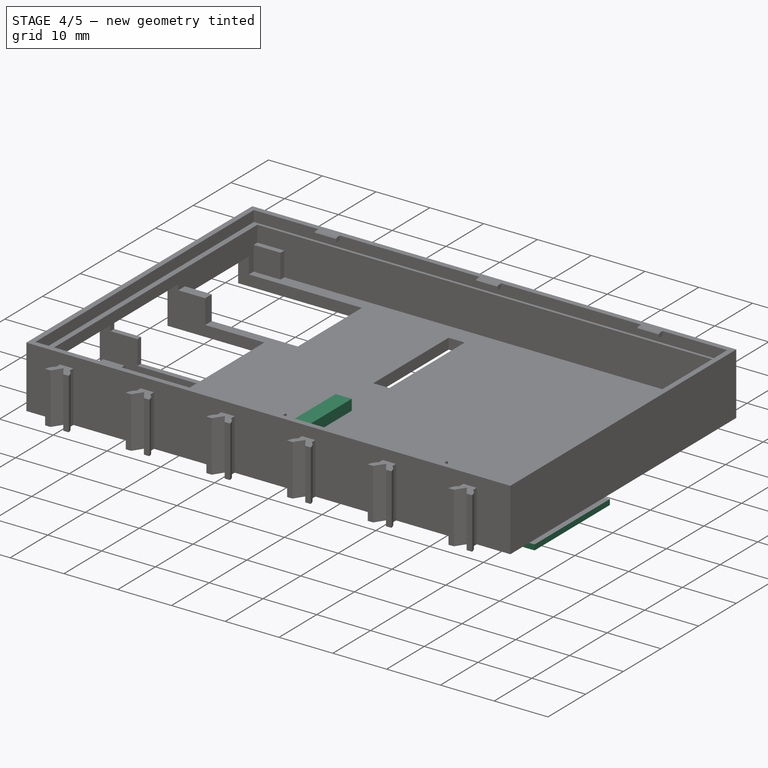
[diagram: stage 4 of 5 — iso view after this stage's code; geometry added in this stage tinted green]
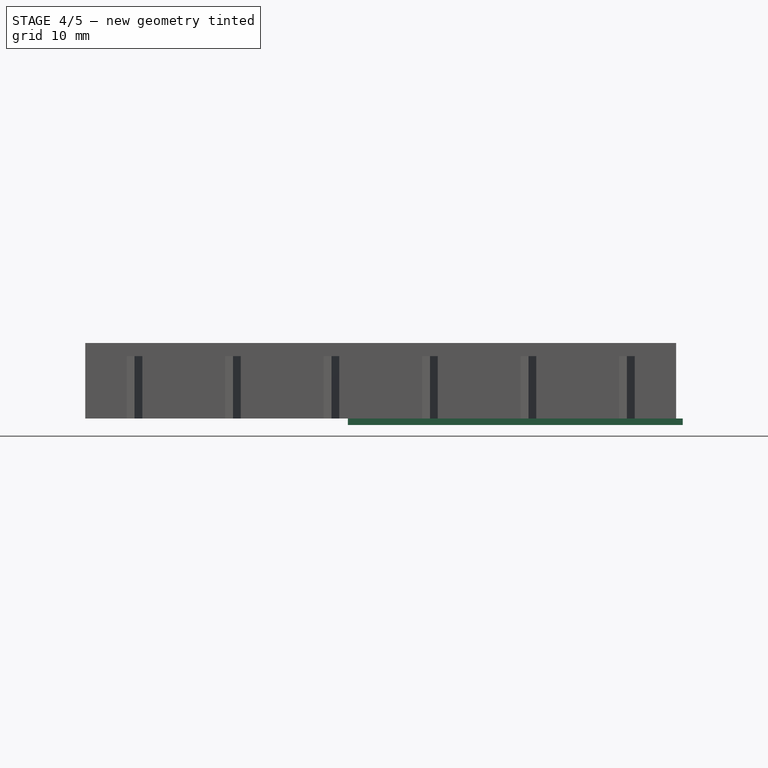
[diagram: stage 4 of 5 — front view after this stage's code; geometry added in this stage tinted green]
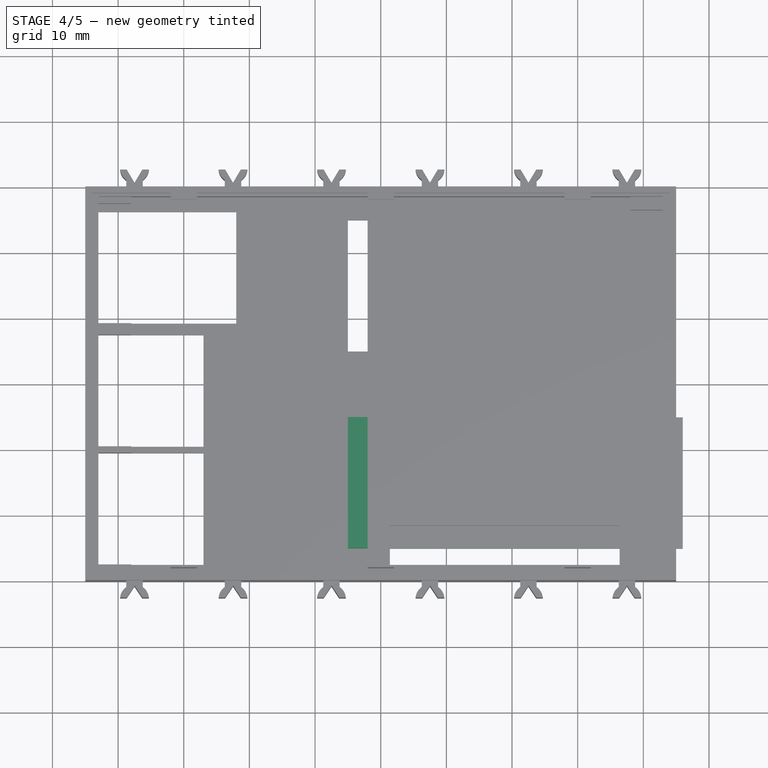
[diagram: stage 4 of 5 — top view after this stage's code; geometry added in this stage tinted green]
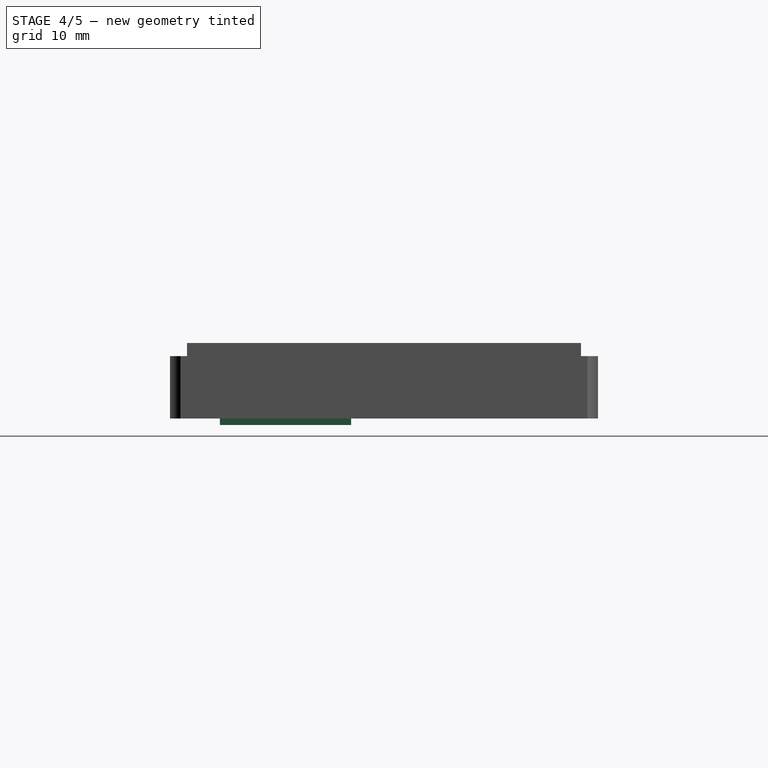
[diagram: stage 4 of 5 — right view after this stage's code; geometry added in this stage tinted green]
FEATURE [PartDesign::Chamfer] Chamfer
  Base = -> LinearPattern [Edge581,Edge577,Edge584,Edge557,Edge560,Edge563]
  Size = 0.2
FEATURE [Part::Box] Box003  label="Würfel003"
  AttacherType = Attacher::AttachEngine3D
  Height = 1
  Length = 51
  Placement = pos=(-5,-25,-1) rot=(0,0,1;0rad)
  Width = 20
FEATURE [Part::Box] Box004  label="Würfel004"
  AttacherType = Attacher::AttachEngine3D
  Height = 5
  Length = 3
  Placement = pos=(-5,-25,-1) rot=(0,0,1;0rad)
  Width = 20
FEATURE [Part::Cut] Cut
  Base = -> Chamfer
  Tool = -> Fusion
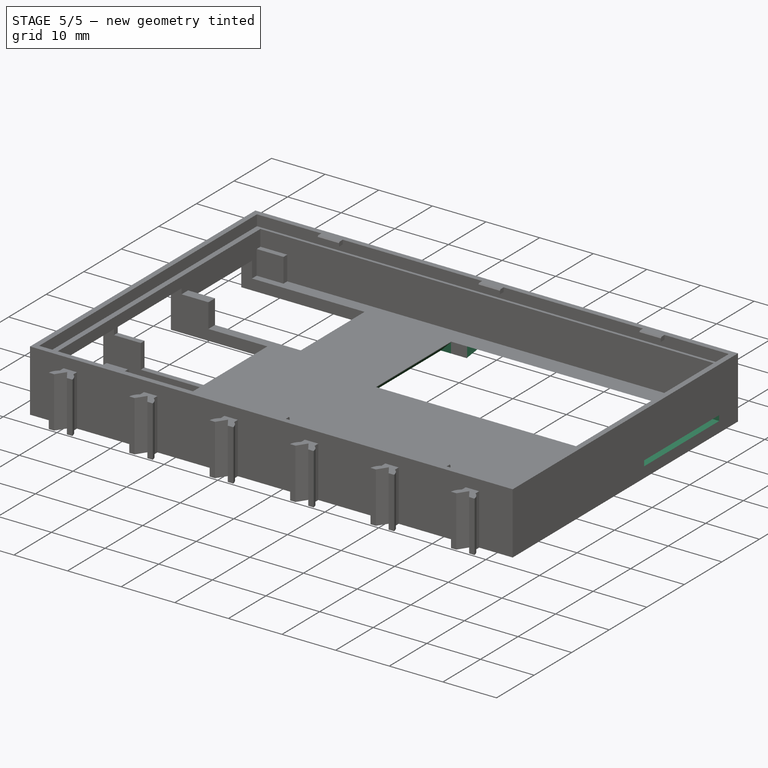
[diagram: stage 5 of 5 — iso view after this stage's code; geometry added in this stage tinted green]
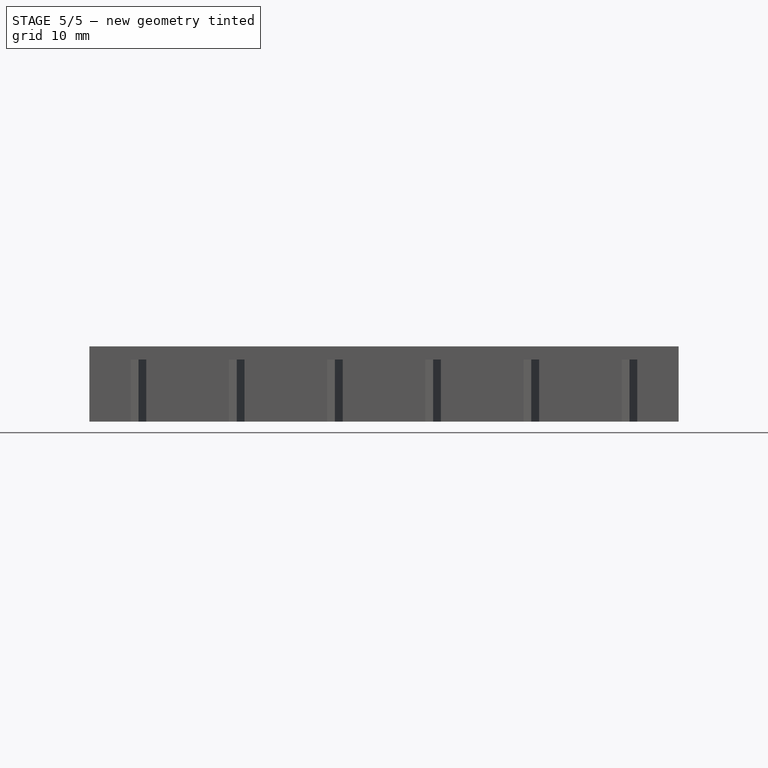
[diagram: stage 5 of 5 — front view after this stage's code; geometry added in this stage tinted green]
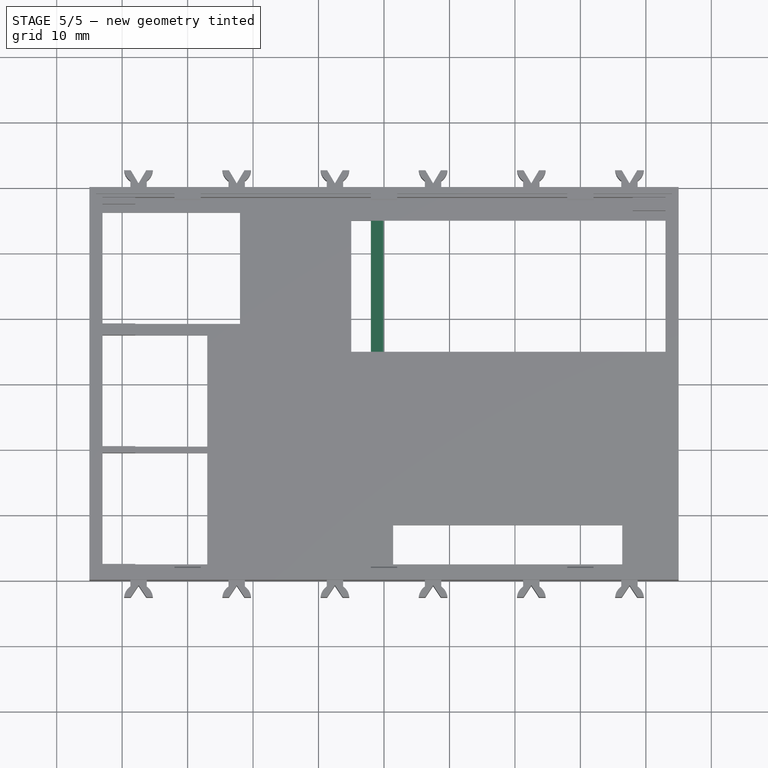
[diagram: stage 5 of 5 — top view after this stage's code; geometry added in this stage tinted green]
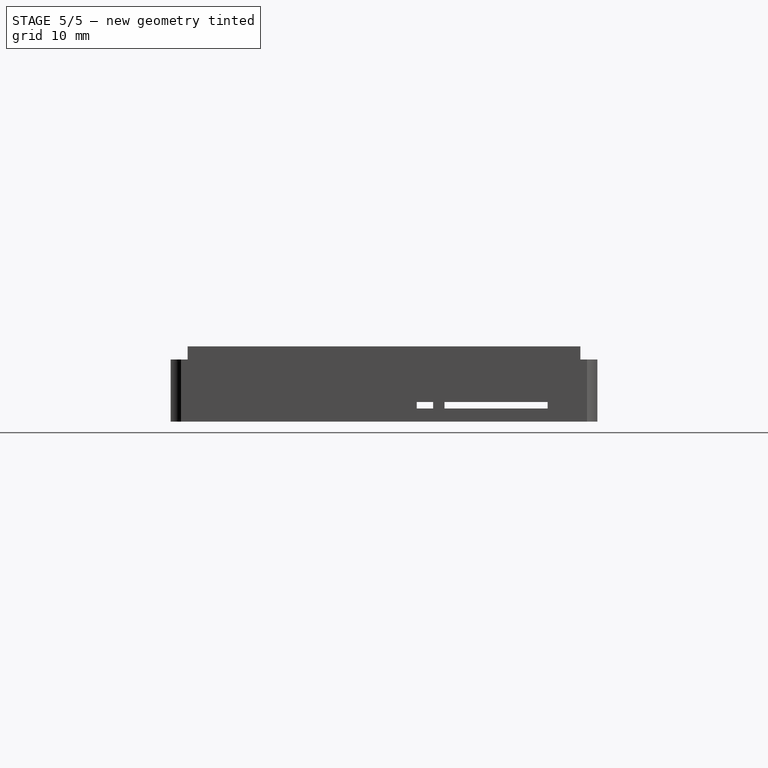
[diagram: stage 5 of 5 — right view after this stage's code; geometry added in this stage tinted green]
FEATURE [Part::MultiFuse] Fusion001  label="wire channel001"
  Placement = pos=(0,30,3) rot=(0,0,1;0rad)
  Shapes = -> [Box003,Box004]
FEATURE [Part::Cut] Cut001  label="Bottom v4 with ribbon slot raw"
  Base = -> Cut
  Tool = -> Fusion001
FEATURE [Part::Chamfer] Chamfer001
  Base = -> Cut001
  Edges = 1 edges r=1.9: [Edge708]
FEATURE [Part::Chamfer] Chamfer002  label="Bottom v4 with ribbon slot"
  Base = -> Chamfer001
  Edges = 1 edges r=1.9: [Edge57]
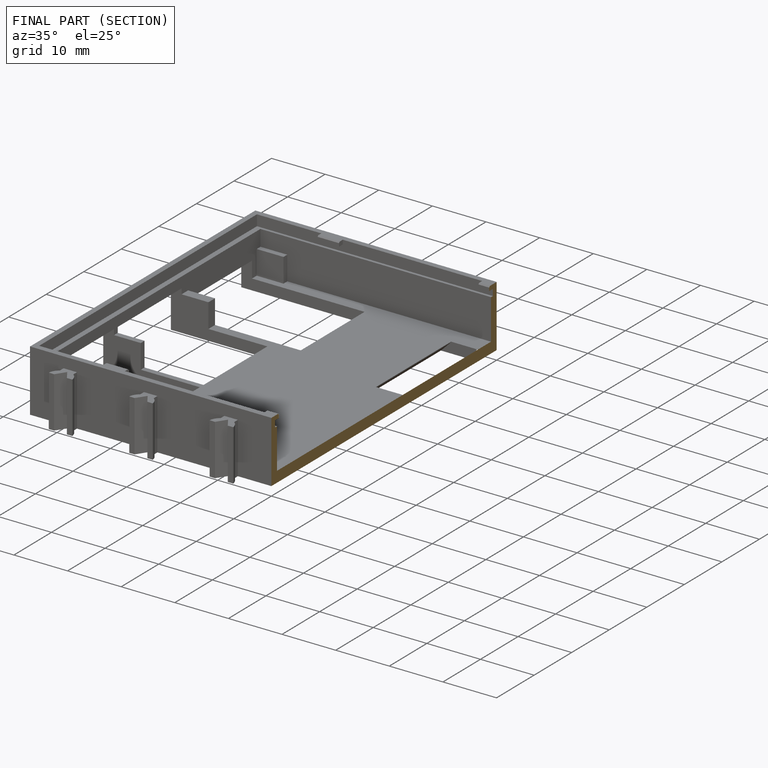
[diagram: finished part — half-section view (interior)]
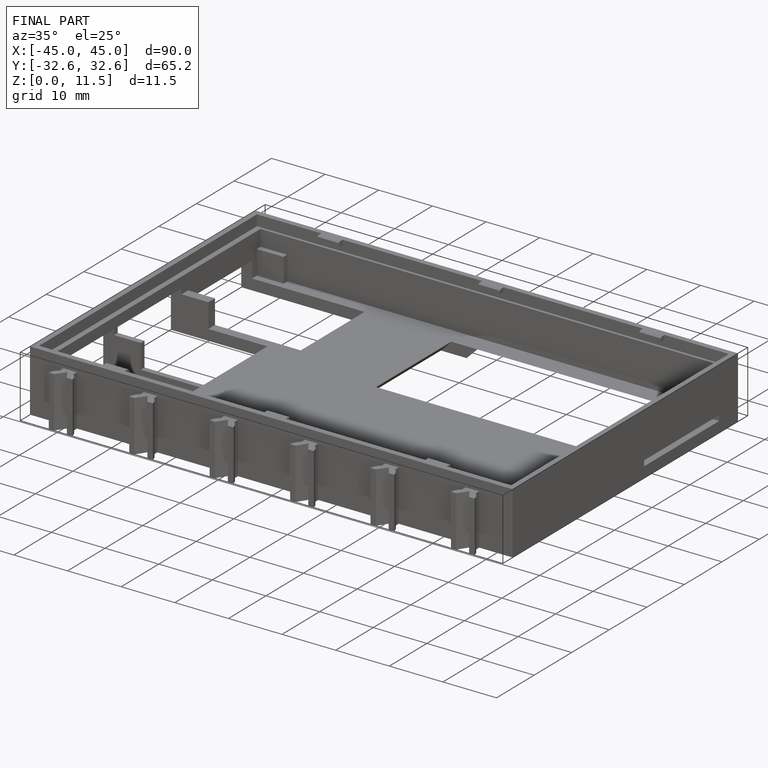
[diagram: finished part — iso view with bounding-box wireframe]
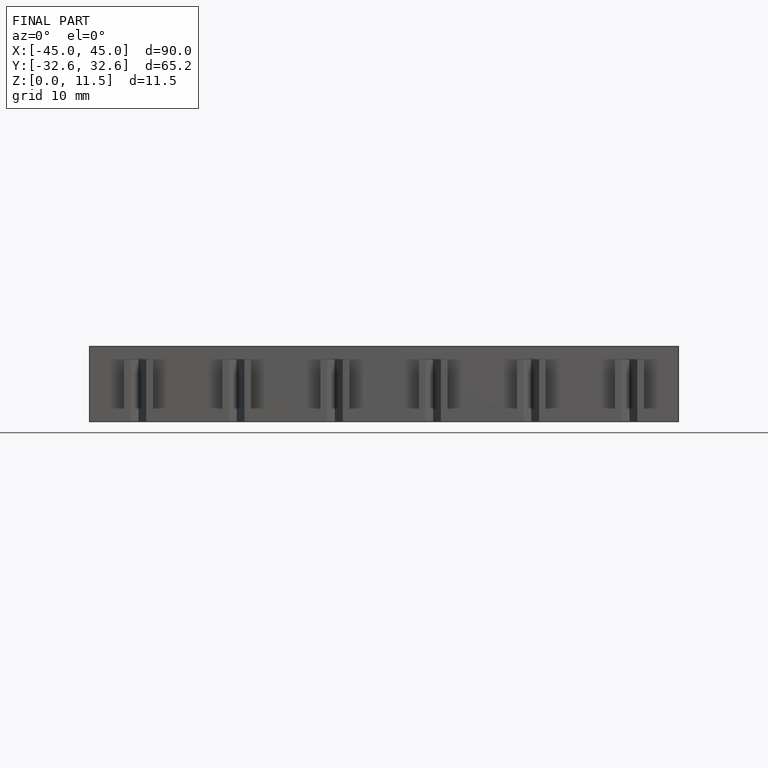
[diagram: finished part — front view with bounding-box wireframe]
